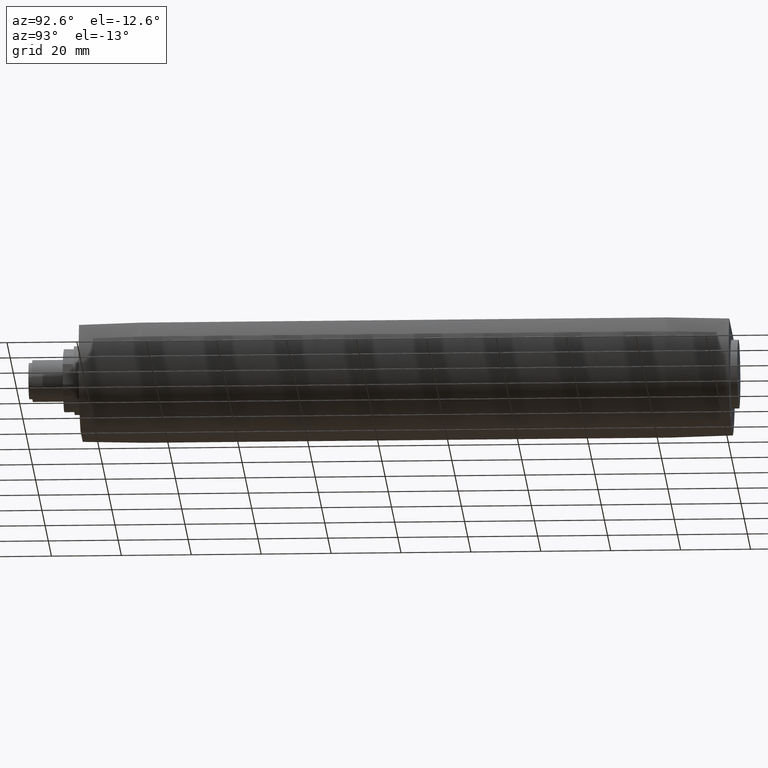
[diagram: clean part render]
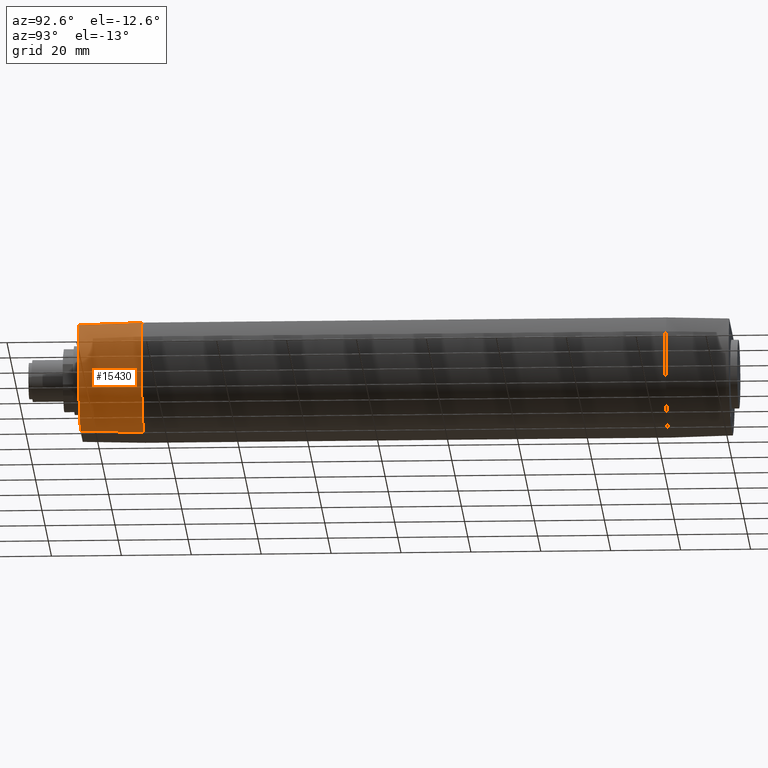
[diagram: same view with one face highlighted and labeled with its STEP entity id]
A machine part, auxiliary view. The second image highlights one B-rep face of the part: STEP entity #15430.
In plain terms, the highlighted conical surface has half-angle 1.4 deg.
Its self-contained STEP definition (entity closure, byte-faithful):
#9310=CARTESIAN_POINT('',(-16.3345515631189,10.7600894754653,-93.));
#9320=VERTEX_POINT('',#9310);
#9350=CARTESIAN_POINT('',(2.46912516096858E-14,6.25447521409836E-14,-93.
));
#9360=DIRECTION('',(-4.10824459617193E-15,-8.62636167101549E-15,-1.));
#9370=DIRECTION('',(0.,1.,-8.62636167101549E-15));
#9380=AXIS2_PLACEMENT_3D('',#9350,#9360,#9370);
#9390=CIRCLE('',#9380,19.5600894754653);
#9400=CARTESIAN_POINT('',(-6.88024154290118,-18.3100894754653,-93.));
#9410=VERTEX_POINT('',#9400);
#9420=EDGE_CURVE('',#9410,#9320,#9390,.T.);
#13430=CARTESIAN_POINT('',(-6.88024154293413,-18.3100894754594,
-93.0000000000029));
#13440=CARTESIAN_POINT('',(-6.90688247262698,-18.4567263004301,
-87.0000006768117));
#13450=CARTESIAN_POINT('',(-6.93336869645061,-18.6033631422228,
-81.0000006652525));
#13460=CARTESIAN_POINT('',(-6.9597054535788,-18.7499999999928,
-74.9999999999996));
#13470=B_SPLINE_CURVE_WITH_KNOTS('',3,(#13430,#13440,#13450,#13460),
.UNSPECIFIED.,.F.,.F.,(4,4),(0.,18.0055501421536),.UNSPECIFIED.);
#13480=CARTESIAN_POINT('',(-6.95970545353753,-18.75,-75.));
#13490=VERTEX_POINT('',#13480);
#13500=EDGE_CURVE('',#9410,#13490,#13470,.T.);
#14550=CARTESIAN_POINT('',(-16.5698521417664,11.2,-75.));
#14560=VERTEX_POINT('',#14550);
#15090=CARTESIAN_POINT('',(5.19843624293478E-14,1.14904835442307E-13,
-75.0000000000696));
#15100=DIRECTION('',(-2.05412229808596E-15,-4.31318083550774E-15,-1.));
#15110=DIRECTION('',(1.,-8.8598009298935E-30,-2.05412229808596E-15));
#15120=AXIS2_PLACEMENT_3D('',#15090,#15100,#15110);
#15130=CIRCLE('',#15120,19.9999999999992);
#15140=EDGE_CURVE('',#13490,#14560,#15130,.T.);
#15260=CARTESIAN_POINT('',(1.00491693657532E-13,2.21708115621547E-13,
-74.5491896177562));
#15270=DIRECTION('',(4.10824459617193E-15,8.62636167101549E-15,1.));
#15280=DIRECTION('',(0.,1.,-8.62636167101549E-15));
#15290=AXIS2_PLACEMENT_3D('',#15260,#15270,#15280);
#15300=CONICAL_SURFACE('',#15290,20.011017568429,0.0244346095279267);
#15310=ORIENTED_EDGE('',*,*,#13500,.T.);
#15320=ORIENTED_EDGE('',*,*,#9420,.F.);
#15330=CARTESIAN_POINT('',(-16.5698521417659,11.1999999999991,
-75.0000000000372));
#15340=CARTESIAN_POINT('',(-16.4919754200439,11.0533629813378,
-81.0000072485449));
#15350=CARTESIAN_POINT('',(-16.4135499125742,10.9067261359857,
-87.0000074056919));
#15360=CARTESIAN_POINT('',(-16.3345515631189,10.7600894754653,
-92.9999999999996));
#15370=B_SPLINE_CURVE_WITH_KNOTS('',3,(#15330,#15340,#15350,#15360),
.UNSPECIFIED.,.F.,.F.,(4,4),(0.,18.006912270521),.UNSPECIFIED.);
#15380=EDGE_CURVE('',#14560,#9320,#15370,.T.);
#15390=ORIENTED_EDGE('',*,*,#15380,.T.);
#15400=ORIENTED_EDGE('',*,*,#15140,.T.);
#15410=EDGE_LOOP('',(#15400,#15390,#15320,#15310));
#15420=FACE_OUTER_BOUND('',#15410,.T.);
#15430=ADVANCED_FACE('',(#15420),#15300,.T.);